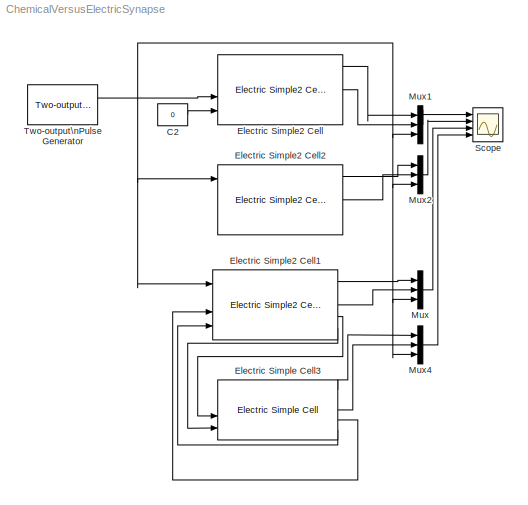
MODEL ChemicalVersusElectricSynapse
KIND model
BLOCK [Constant] C2
  OutDataType = sfix(16)
  OutScaling = 2^0
  Value = 0
BLOCK [Reference] Electric Simple Cell3  REF=NeuroModelerLibrary/Simple Cells/Electric Simple Cell
  FunctionWithSeparateData = off
  Ports = [4, 5]
  RTWMemSecDataConstants = Inherit from model
  RTWMemSecDataInternal = Inherit from model
  RTWMemSecDataParameters = Inherit from model
  RTWMemSecFuncExecute = Inherit from model
  RTWMemSecFuncInitTerm = Inherit from model
  ShowPortLabels = FromPortIcon
  SourceBlock = NeuroModelerLibrary/Simple Cells/Electric Simple Cell
  SourceType = SubSystem
  SystemSampleTime = -1
BLOCK [Reference] Electric Simple2 Cell  REF=NeuroModelerLibrary/Simple Cells/Electric Simple2 Cell
  FunctionWithSeparateData = off
  Ports = [4, 5]
  RTWMemSecDataConstants = Inherit from model
  RTWMemSecDataInternal = Inherit from model
  RTWMemSecDataParameters = Inherit from model
  RTWMemSecFuncExecute = Inherit from model
  RTWMemSecFuncInitTerm = Inherit from model
  ShowPortLabels = FromPortIcon
  SourceBlock = NeuroModelerLibrary/Simple Cells/Electric Simple2 Cell
  SourceType = SubSystem
  SystemSampleTime = -1
BLOCK [Reference] Electric Simple2 Cell1  REF=NeuroModelerLibrary/Simple Cells/Electric Simple2 Cell
  FunctionWithSeparateData = off
  Ports = [4, 5]
  RTWMemSecDataConstants = Inherit from model
  RTWMemSecDataInternal = Inherit from model
  RTWMemSecDataParameters = Inherit from model
  RTWMemSecFuncExecute = Inherit from model
  RTWMemSecFuncInitTerm = Inherit from model
  ShowPortLabels = FromPortIcon
  SourceBlock = NeuroModelerLibrary/Simple Cells/Electric Simple2 Cell
  SourceType = SubSystem
  SystemSampleTime = -1
BLOCK [Reference] Electric Simple2 Cell2  REF=NeuroModelerLibrary/Simple Cells/Electric Simple2 Cell
  FunctionWithSeparateData = off
  Ports = [4, 5]
  RTWMemSecDataConstants = Inherit from model
  RTWMemSecDataInternal = Inherit from model
  RTWMemSecDataParameters = Inherit from model
  RTWMemSecFuncExecute = Inherit from model
  RTWMemSecFuncInitTerm = Inherit from model
  ShowPortLabels = FromPortIcon
  SourceBlock = NeuroModelerLibrary/Simple Cells/Electric Simple2 Cell
  SourceType = SubSystem
  SystemSampleTime = -1
BLOCK [Mux] Mux
  DisplayOption = bar
  Inputs = 3
  Ports = [3, 1]
BLOCK [Mux] Mux1
  DisplayOption = bar
  Inputs = 3
  Ports = [3, 1]
BLOCK [Mux] Mux2
  DisplayOption = bar
  Inputs = 3
  Ports = [3, 1]
BLOCK [Mux] Mux4
  DisplayOption = bar
  Inputs = 3
  Ports = [3, 1]
BLOCK [Scope] Scope
  DataFormat = StructureWithTime
  Floating = off
  MaxDataPoints = 50000
  NumInputPorts = 4
  Ports = [4]
  SampleTime = 0
  TimeRange = 1
  YMax = 0.011~0.011~0.011~0.011
  YMin = -0.021~-0.021~-0.021~-0.021
  ZoomMode = xonly
BLOCK [Reference] Two-output\nPulse Generator  REF=NeuroModelerLibrary/Support/Two-output\nPulse Generator
  A = 1
  FunctionWithSeparateData = off
  OOff1 = 0.8
  OOff2 = 0.8
  OOn1 = 0.2
  OOn2 = 0.2
  P1 = 200
  P2 = 200
  PW = 1
  Ports = [0, 2]
  RTWMemSecDataConstants = Inherit from model
  RTWMemSecDataInternal = Inherit from model
  RTWMemSecDataParameters = Inherit from model
  RTWMemSecFuncExecute = Inherit from model
  RTWMemSecFuncInitTerm = Inherit from model
  ST = 0.001
  ShowPortLabels = FromPortIcon
  SourceBlock = NeuroModelerLibrary/Support/Two-output\nPulse Generator
  SystemSampleTime = -1
LINE C2:1 -> Electric Simple2 Cell:4
LINE Electric Simple Cell3:1 -> Mux4:1
LINE Electric Simple Cell3:3 -> Mux4:2
LINE Electric Simple Cell3:4 -> Electric Simple2 Cell1:3
LINE Electric Simple Cell3:5 -> Electric Simple2 Cell1:4
LINE Electric Simple2 Cell1:1 -> Mux:1
LINE Electric Simple2 Cell1:3 -> Mux:2
LINE Electric Simple2 Cell1:4 -> Electric Simple Cell3:3
LINE Electric Simple2 Cell1:5 -> Electric Simple Cell3:4
LINE Electric Simple2 Cell2:1 -> Mux2:1
LINE Electric Simple2 Cell2:3 -> Mux2:2
LINE Electric Simple2 Cell:1 -> Mux1:1
LINE Electric Simple2 Cell:3 -> Mux1:2
LINE Mux1:1 -> Scope:1
LINE Mux2:1 -> Scope:2
LINE Mux4:1 -> Scope:4
LINE Mux:1 -> Scope:3
NET Two-output\nPulse Generator:1 -> Electric Simple2 Cell1:1, Electric Simple2 Cell2:1, Electric Simple2 Cell:3, Mux1:3, Mux2:3, Mux4:3, Mux:3
note: NET lines group one-source signal fan-out (src -> all destinations, sorted); 1:1 wires keep LINE
